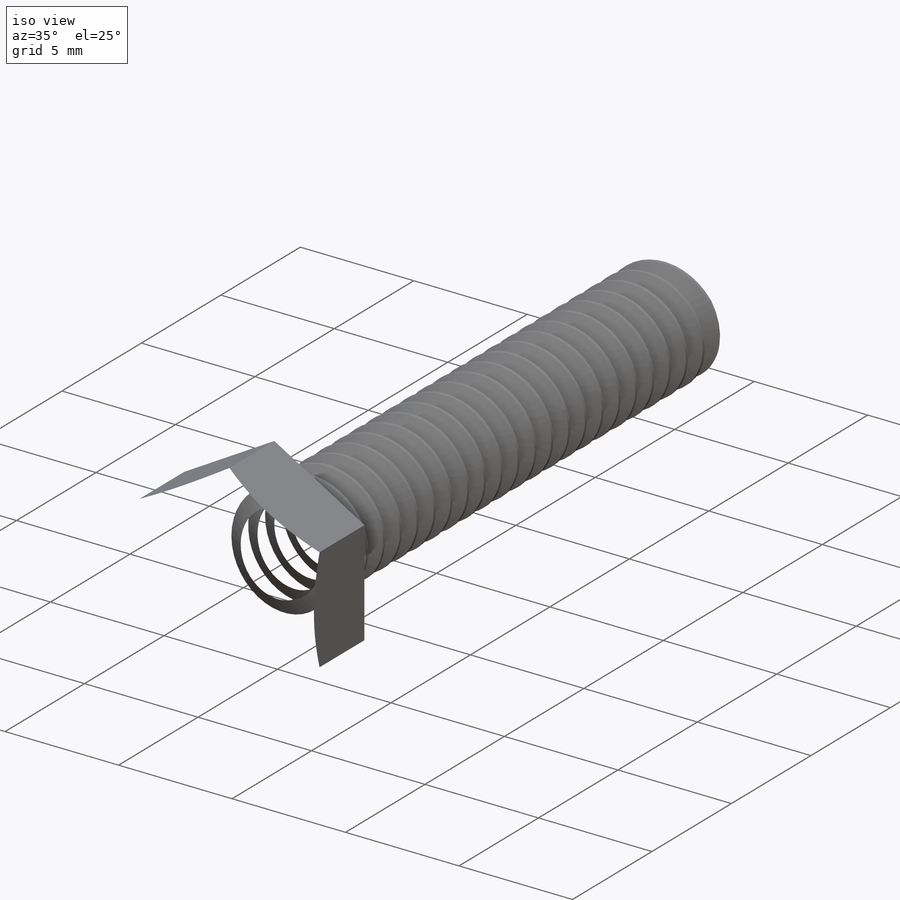
[diagram: iso view]
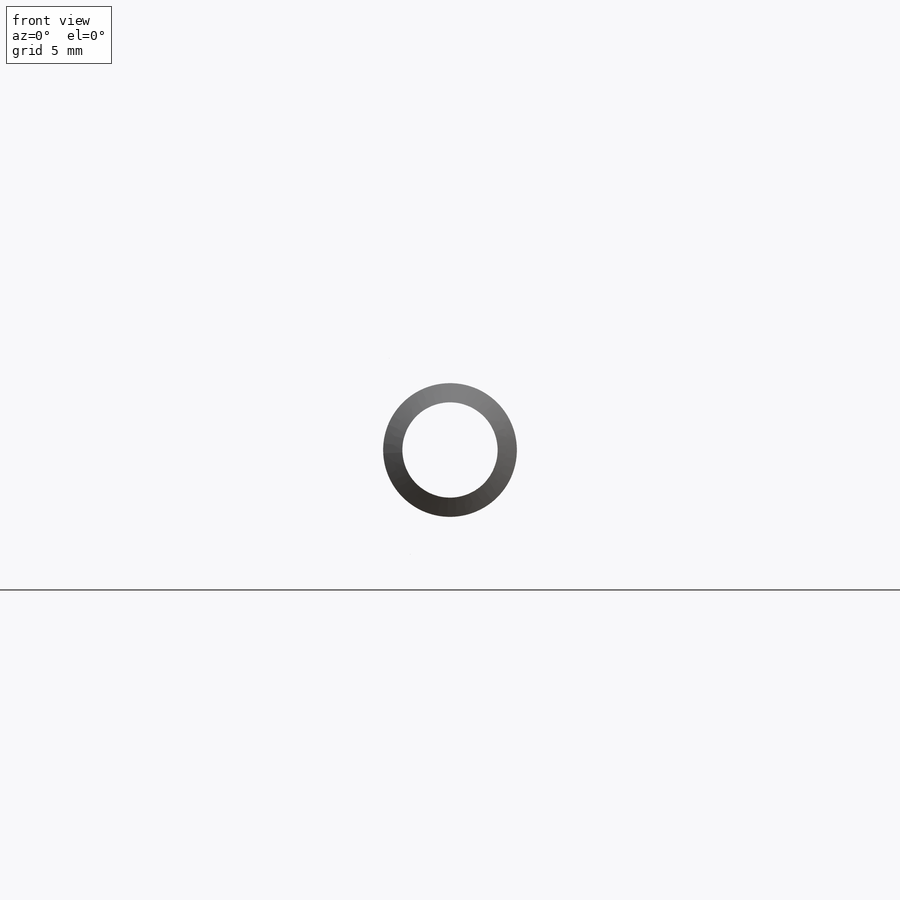
[diagram: front view]
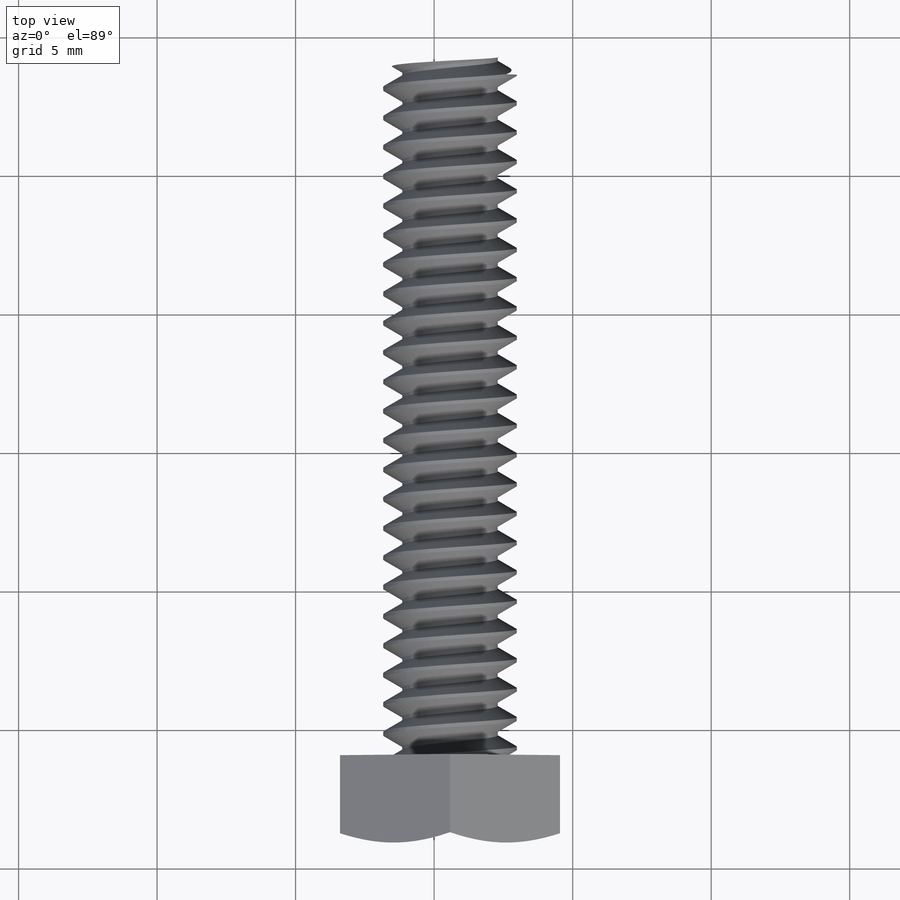
[diagram: top view]
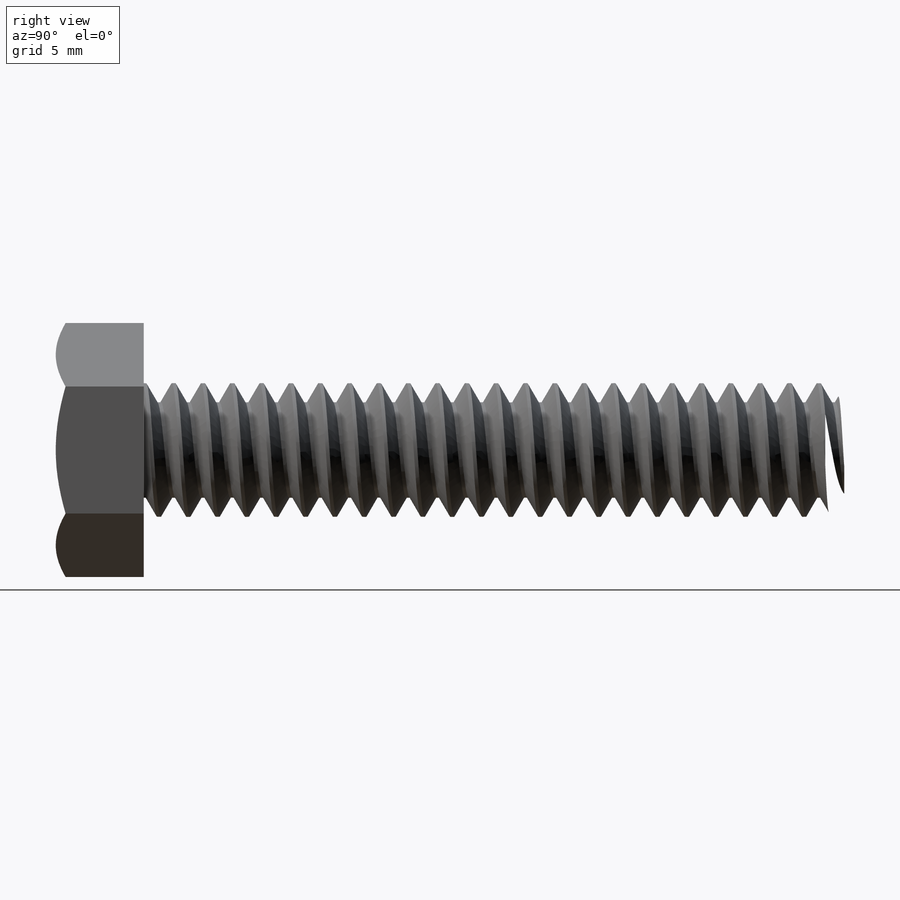
[diagram: right view]
SOLIDWORKS PART (.sldprt)
format: sldprt  version: not decoded by parser v0  size: 3,345,408 bytes
history: native  units: mm
features: sketch x23, cut_extrude x11, helix x3, sweep x3, extrude x3, revolve x2, pattern_circular x2, material x1, plane x1 (+18 scaffold rows collapsed; 3 parser-record rows omitted)
feature tree (70):
  scaffold x18  (default folders/planes/origin — collapsed)
  material  "Material <not specified>"
  sketch  "Sketch1"  dims[c1.A=9.525mm c1.B=34.925mm c1.D=50.8mm c1.E=17.4625mm c1.F=~22.540686mm c1.G=~23.24135mm c2.G=3.175mm c2.F=14.2875mm c2.L=26.9875mm c2.D1=26.9875mm c3.D1=~1.783333deg c3.D2=304.8mm c3.D3=9.525mm c4.D1=26.9875mm c5.D1=~1.789911deg c5.D2=3.175mm c5.D3=~0.79375mm c5.Bore=31.75mm c5.D4=0.508mm c5.D5=~7.794887mm c6.D5=45.0deg c6.D6=0.508mm c6.D7=~10.661771mm c7.D7=45.0deg c7.Run=304.8mm c7.Rise=19.05mm c8.Run=14.2875mm c8.Rise=~0.446484mm]
  revolve  "Revolve1"  Angle=360deg
  sketch  "Sketch2"  dims[Bolt Circle=42.291mm]
  sketch  "Sketch3"  dims[D1=1.016mm]
  cut_extrude  "Cut-Extrude1"  [1 undecoded]
  sketch  "Sketch4"  dims[Cap Screw Size=4.826mm]
  cut_extrude  "Cut-Extrude2"  [1 undecoded]
  sketch  "Sketch5"
  helix  "Helix/Spiral1"  Pitch=10.583333mm
  sketch  "Sketch6"  dims[D1=~1.058333mm D2=~0.132292mm]
  sweep  "Sweep1"
  sketch  "Sketch7"
  cut_extrude  "Cut-Extrude3"  [1 undecoded]
  sketch  "Sketch8"  dims[D1=0.0mm]
  cut_extrude  "Cut-Extrude4"  Depth=1.190625mm
  pattern_circular  "CirPattern1"  Count=3 Angle=360deg Cap Screw #=3
  parser-record x3  (decoder bookkeeping rows leaked as tree rows — omitted from the tree; the rows remain in map.json)
  sketch  "Sketch9"
  extrude  "Boss-Extrude1"  Depth=25.4mm Cap Screw Length=25.4mm Washer Thickness=1.016mm
  sketch  "Sketch10"  dims[D1=0.0mm]
  helix  "Helix/Spiral2"  Pitch=26.458333mm
  sketch  "Sketch11"  dims[D1=~1.058333mm D2=~0.132292mm]
  sweep  "Cut-Sweep1"
  sketch  "Sketch12"
  cut_extrude  "Cut-Extrude5"  [1 undecoded]
  sketch  "Sketch13"  dims[Cap Screw Hex=7.9375mm]
  extrude  "Boss-Extrude2"  Depth=3.175mm Cap Screw Hex=3.175mm
  sketch  "Sketch14"
  cut_extrude  "Cut-Extrude6"  [1 undecoded]
  sketch  "Sketch15"  dims[Washer OD=8.636mm Washer ID=4.826mm]
  extrude  "Boss-Extrude3"  [1 undecoded]
  pattern_circular  "CirPattern2"  Count=3 Angle=360deg
  sketch  "Sketch16"  dims[Key Wd.=6.35mm Key Dp.=1.5875mm D3=~9.723429mm]
  cut_extrude  "Cut-Extrude7"  [1 undecoded]
  plane  "Plane1"
  sketch  "Sketch17"  dims[Set Screw Size=4.826mm D1=0.0mm]
  helix  "Helix/Spiral3"  Pitch=25.4mm
  sketch  "Sketch18"  dims[D1=~1.058333mm D2=~0.132292mm D3=~0.801976mm]
  sketch  "Sketch19"
  cut_extrude  "Cut-Extrude9"  [1 undecoded]
  sweep  "Cut-Sweep2"
  sketch  "Sketch20"
  cut_extrude  "Cut-Extrude10"  Depth=3.175mm
  sketch  "Sketch21"  dims[c1.D1=7.9375mm c1.D2=~0.396875mm c1.D3=~5.231876mm c2.D3=45.0deg c3.D3=~0.562389mm c3.D4=~0.562389mm c3.Set Screw Pitch=~1.058333mm]
  revolve  "Revolve2"  Angle=360deg
  sketch  "Sketch22"  dims[Set Screw Hex=~2.38125mm]
  cut_extrude  "Cut-Extrude11"  Depth=1.488281mm
  sketch  "Sketch23"
  cut_extrude  "Cut-Extrude12"  [1 undecoded]
decode coverage: 27 of 47 modeling features carry decoded parameters
note: ~ marks probable driven/reference dimensions
note: 9 parameter values undecoded
summary: no parameter record found for 9 features
note: suppression state not decoded; provenance and decode notes live in map.json
